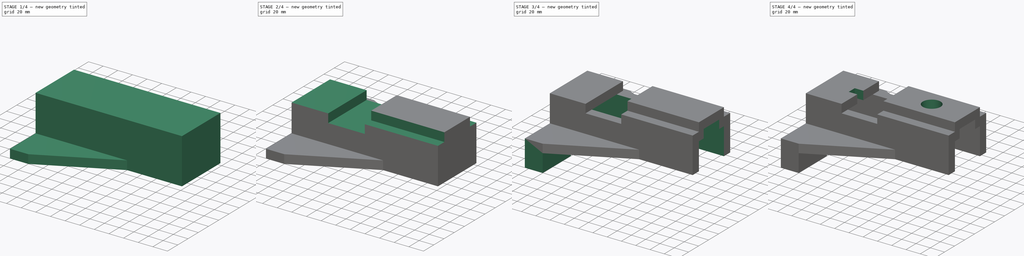
[diagram: build sequence overview — one tinted view per stage of 4, left to right]
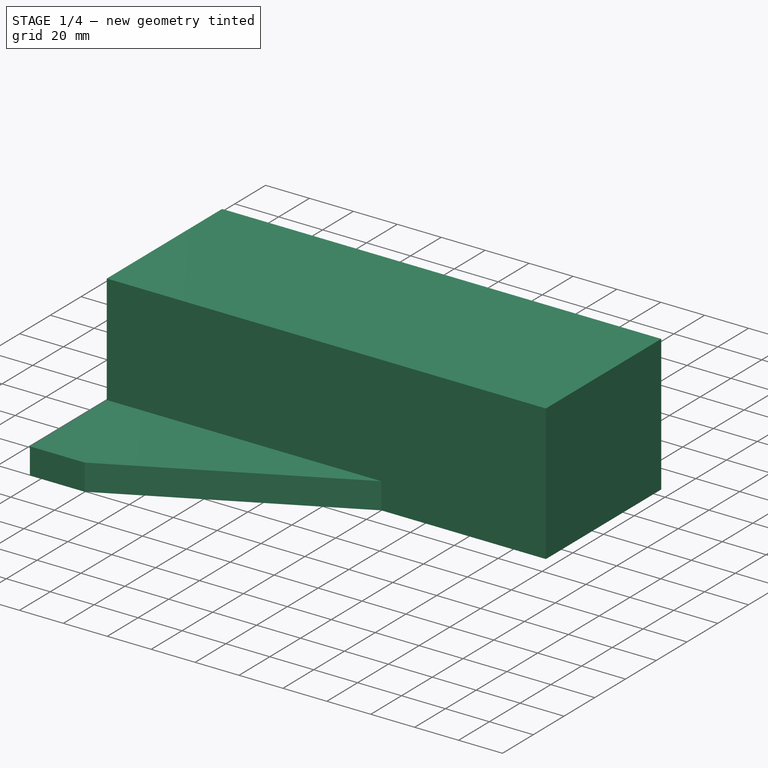
[diagram: stage 1 of 4 — iso view after this stage's code; geometry added in this stage tinted green]
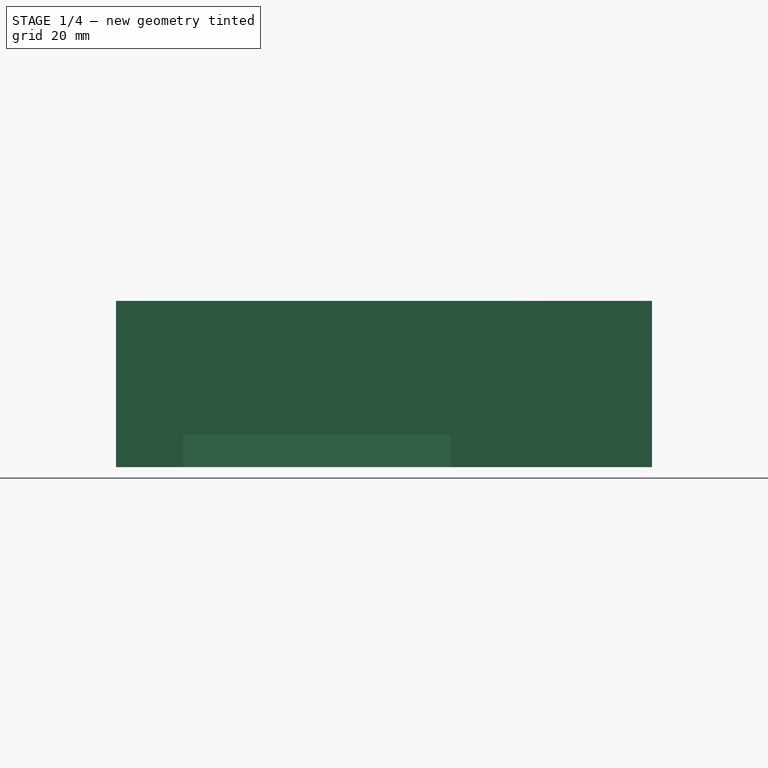
[diagram: stage 1 of 4 — front view after this stage's code; geometry added in this stage tinted green]
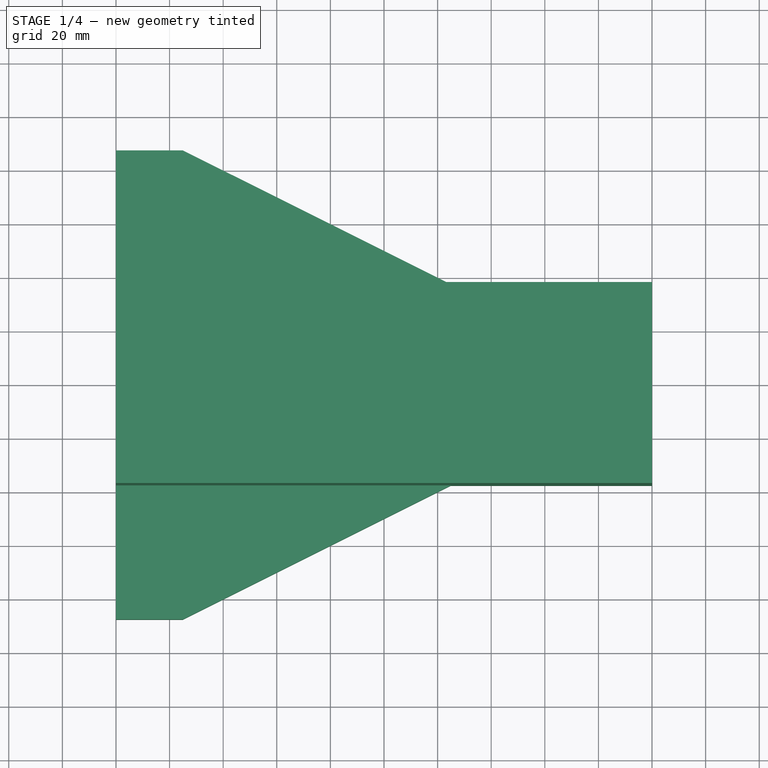
[diagram: stage 1 of 4 — top view after this stage's code; geometry added in this stage tinted green]
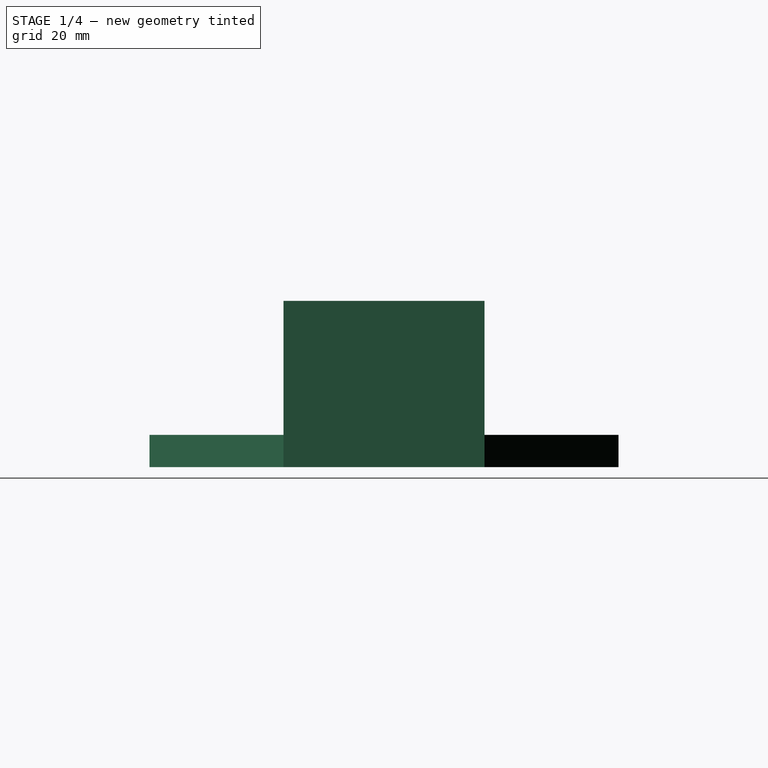
[diagram: stage 1 of 4 — right view after this stage's code; geometry added in this stage tinted green]
FCSTD DOCUMENT  (FreeCAD 0.16R)
Label: Fig 3.40 Final
License: All rights reserved
LicenseURL: http://en.wikipedia.org/wiki/All_rights_reserved
objects: Sketcher::SketchObject×10, PartDesign::Pocket×8, PartDesign::Pad×2
note: 30 computed .brp shape members not serialized (recipe doc carries the construction recipe); baked Part::Feature solids carry a one-line shape summary decoded from their .brp

FEATURE [Sketcher::SketchObject] Sketch
  sketch-geometry (8):
    g0: LineSegment StartX=0 StartY=87.5 StartZ=0 EndX=0 EndY=-87.5 EndZ=0
    g1: LineSegment StartX=0 StartY=-87.5 StartZ=0 EndX=25 EndY=-87.5 EndZ=0
    g2: LineSegment StartX=25 StartY=-87.5 StartZ=0 EndX=125 EndY=-37.5 EndZ=0
    g3: LineSegment StartX=125 StartY=-37.5 StartZ=0 EndX=200 EndY=-37.5 EndZ=0
    g4: LineSegment StartX=200 StartY=-37.5 StartZ=0 EndX=200 EndY=37.5 EndZ=0
    g5: LineSegment StartX=200 StartY=37.5 StartZ=0 EndX=125 EndY=37.5 EndZ=0
    g6: LineSegment StartX=125 StartY=37.5 StartZ=0 EndX=25 EndY=87.5 EndZ=0
    g7: LineSegment StartX=25 StartY=87.5 StartZ=0 EndX=0 EndY=87.5 EndZ=0
  constraints (24):
    c: Vertical(g0)
    c: Coincident(g0,g1)
    c: Horizontal(g1)
    c: Coincident(g1,g2)
    c: Coincident(g2,g3)
    c: Horizontal(g3)
    c: Coincident(g3,g4)
    c: Vertical(g4)
    c: Coincident(g4,g5)
    c: Horizontal(g5)
    c: Coincident(g5,g6)
    c: Coincident(g6,g7)
    c: Coincident(g7,g0)
    c: Horizontal(g7)
    c: DistanceY(g0,g0) = 175
    c: DistanceX(g0,g3) = 200
    c: DistanceX(g1,g1) = 25
    c: DistanceX(g7,g7) = 25
    c: DistanceX(g5,g5) = 75
    c: DistanceX(g3,g3) = 75
    c: DistanceY(g4,g4) = 75
    c: Symmetric(g0,g0,g-1)
    c: Symmetric(g4,g3,g-1)
    c: PointOnObject(g0,g-2)
FEATURE [PartDesign::Pad] Pad
  Length = 62
  Length2 = 100
  Sketch = -> Sketch
  Type = 0
FEATURE [Sketcher::SketchObject] Sketch001
  ExternalGeometry = -> [Pad]
  Placement = pos=(0,0,62) rot=(0,0,1;0rad)
  Support = -> Pad [Face10]
  sketch-geometry (8):
    g0: LineSegment StartX=-20.5928 StartY=37.5 StartZ=0 EndX=154.306 EndY=37.5 EndZ=0
    g1: LineSegment StartX=154.306 StartY=37.5 StartZ=0 EndX=154.306 EndY=96.3916 EndZ=0
    g2: LineSegment StartX=154.306 StartY=96.3916 StartZ=0 EndX=-20.5928 EndY=96.3916 EndZ=0
    g3: LineSegment StartX=-20.5928 StartY=96.3916 StartZ=0 EndX=-20.5928 EndY=37.5 EndZ=0
    g4: LineSegment StartX=-11.0935 StartY=-37.5 StartZ=0 EndX=138.102 EndY=-37.5 EndZ=0
    g5: LineSegment StartX=138.102 StartY=-37.5 StartZ=0 EndX=138.102 EndY=-100.859 EndZ=0
    g6: LineSegment StartX=138.102 StartY=-100.859 StartZ=0 EndX=-11.0935 EndY=-100.859 EndZ=0
    g7: LineSegment StartX=-11.0935 StartY=-100.859 StartZ=0 EndX=-11.0935 EndY=-37.5 EndZ=0
  constraints (18):
    c: Coincident(g0,g1)
    c: Coincident(g1,g2)
    c: Coincident(g2,g3)
    c: Coincident(g3,g0)
    c: Horizontal(g0)
    c: Horizontal(g2)
    c: Vertical(g1)
    c: Vertical(g3)
    c: Coincident(g4,g5)
    c: Coincident(g5,g6)
    c: Coincident(g6,g7)
    c: Coincident(g7,g4)
    c: Horizontal(g4)
    c: Horizontal(g6)
    c: Vertical(g5)
    c: Vertical(g7)
    c: PointOnObject(g-4,g4)
    c: PointOnObject(g-3,g0)
FEATURE [PartDesign::Pocket] Pocket
  Length = 50
  Sketch = -> Sketch001
  Type = 0
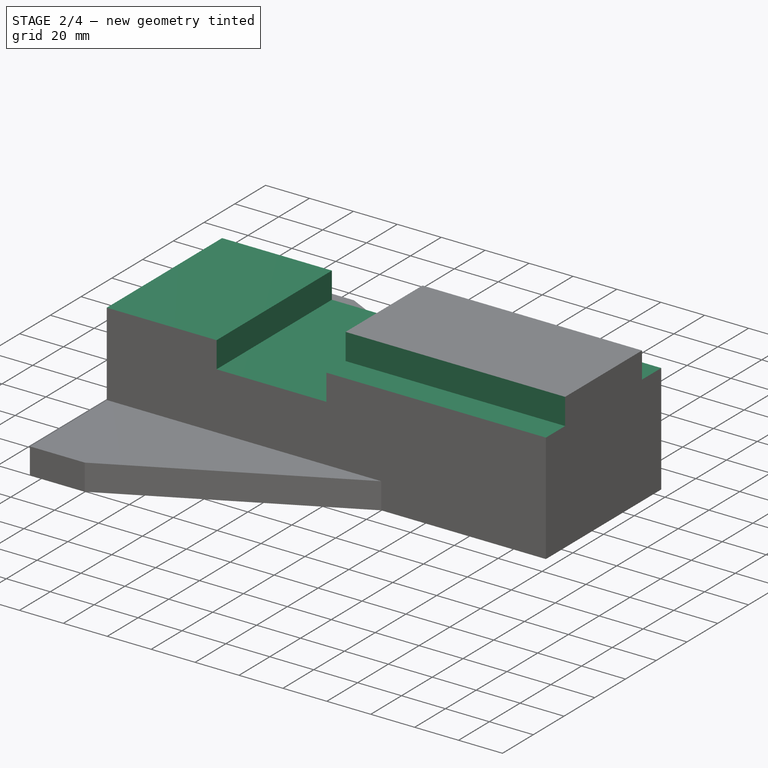
[diagram: stage 2 of 4 — iso view after this stage's code; geometry added in this stage tinted green]
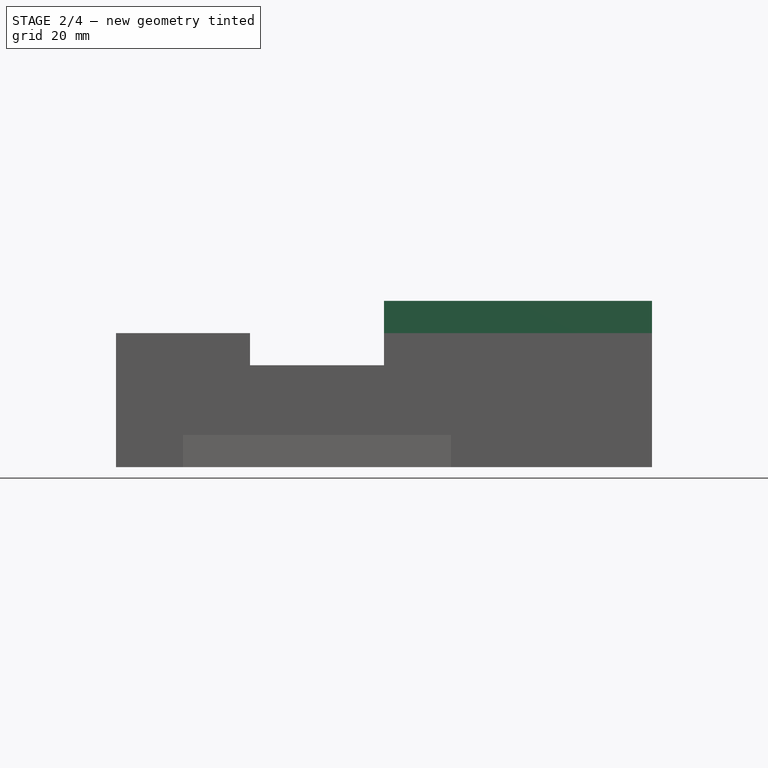
[diagram: stage 2 of 4 — front view after this stage's code; geometry added in this stage tinted green]
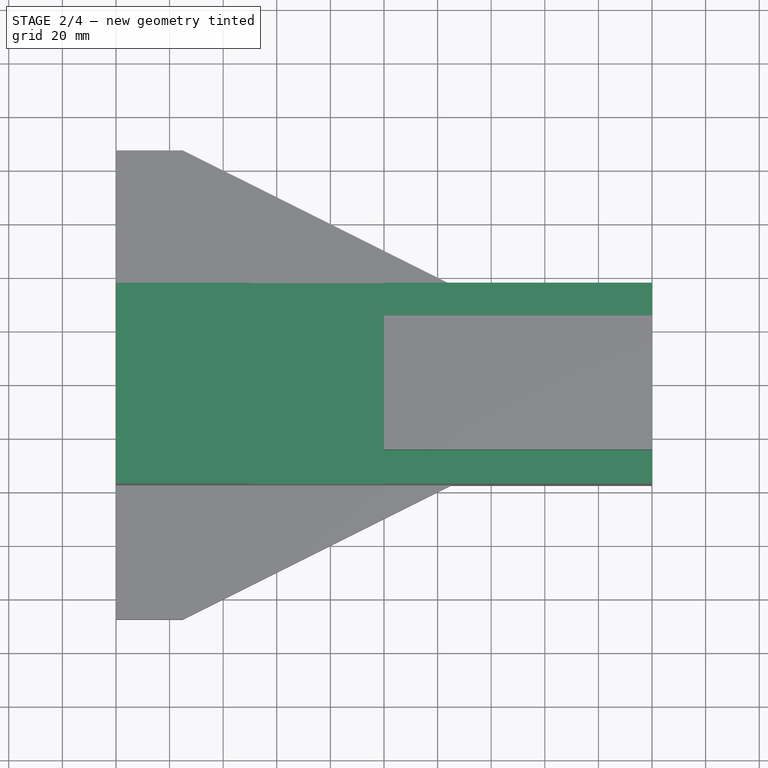
[diagram: stage 2 of 4 — top view after this stage's code; geometry added in this stage tinted green]
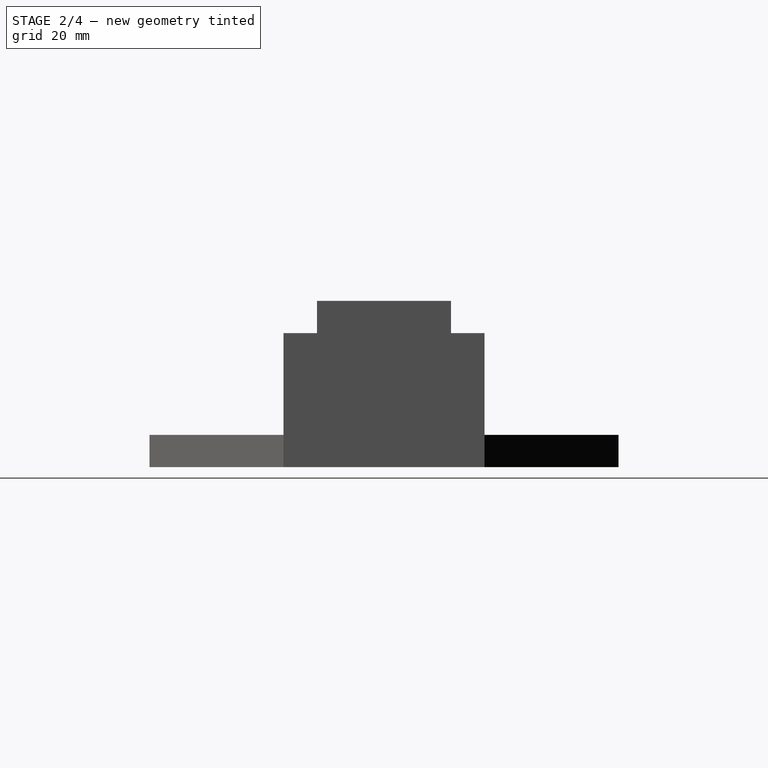
[diagram: stage 2 of 4 — right view after this stage's code; geometry added in this stage tinted green]
FEATURE [Sketcher::SketchObject] Sketch002
  ExternalGeometry = -> [Pocket]
  Placement = pos=(200,0,0) rot=(0.57735,0.57735,0.57735;2.0944rad)
  Support = -> Pocket [Face9]
  sketch-geometry (8):
    g0: LineSegment StartX=-49.4508 StartY=68.2718 StartZ=0 EndX=-25 EndY=68.2718 EndZ=0
    g1: LineSegment StartX=-25 StartY=68.2718 StartZ=0 EndX=-25 EndY=50 EndZ=0
    g2: LineSegment StartX=-25 StartY=50 StartZ=0 EndX=-49.4508 EndY=50 EndZ=0
    g3: LineSegment StartX=-49.4508 StartY=50 StartZ=0 EndX=-49.4508 EndY=68.2718 EndZ=0
    g4: LineSegment StartX=50.0126 StartY=68.2718 StartZ=0 EndX=25 EndY=68.2718 EndZ=0
    g5: LineSegment StartX=25 StartY=68.2718 StartZ=0 EndX=25 EndY=50 EndZ=0
    g6: LineSegment StartX=25 StartY=50 StartZ=0 EndX=50.0126 EndY=50 EndZ=0
    g7: LineSegment StartX=50.0126 StartY=50 StartZ=0 EndX=50.0126 EndY=68.2718 EndZ=0
  constraints (20):
    c: Coincident(g0,g1)
    c: Coincident(g1,g2)
    c: Coincident(g2,g3)
    c: Coincident(g3,g0)
    c: Horizontal(g0)
    c: Horizontal(g2)
    c: Vertical(g1)
    c: Vertical(g3)
    c: Coincident(g4,g5)
    c: Coincident(g5,g6)
    c: Coincident(g6,g7)
    c: Coincident(g7,g4)
    c: Horizontal(g4)
    c: Horizontal(g6)
    c: Vertical(g5)
    c: Vertical(g7)
    c: Symmetric(g0,g4,g-2)
    c: DistanceX(g0,g4) = 50
    c: DistanceY(g1,g-3) = 12
    c: DistanceY(g5,g-3) = 12
FEATURE [PartDesign::Pocket] Pocket001
  Length = 5
  Sketch = -> Sketch002
  Type = 1
FEATURE [Sketcher::SketchObject] Sketch003
  ExternalGeometry = -> [Pocket001]
  Placement = pos=(0,0,62) rot=(0,0,1;0rad)
  Support = -> Pocket001 [Face8]
  sketch-geometry (4):
    g0: LineSegment StartX=-9.4626 StartY=51.2434 StartZ=0 EndX=100 EndY=51.2434 EndZ=0
    g1: LineSegment StartX=100 StartY=51.2434 StartZ=0 EndX=100 EndY=-48.9476 EndZ=0
    g2: LineSegment StartX=100 StartY=-48.9476 StartZ=0 EndX=-9.4626 EndY=-48.9476 EndZ=0
    g3: LineSegment StartX=-9.4626 StartY=-48.9476 StartZ=0 EndX=-9.4626 EndY=51.2434 EndZ=0
  constraints (9):
    c: Coincident(g0,g1)
    c: Coincident(g1,g2)
    c: Coincident(g2,g3)
    c: Coincident(g3,g0)
    c: Horizontal(g0)
    c: Horizontal(g2)
    c: Vertical(g1)
    c: Vertical(g3)
    c: DistanceX(g0,g-3) = 100
FEATURE [PartDesign::Pocket] Pocket002
  Length = 12
  Sketch = -> Sketch003
  Type = 0
FEATURE [Sketcher::SketchObject] Sketch004
  ExternalGeometry = -> [Pocket002]
  Placement = pos=(0,0,50) rot=(0,0,1;0rad)
  Support = -> Pocket002 [Face16]
  sketch-geometry (4):
    g0: LineSegment StartX=50 StartY=56.2758 StartZ=0 EndX=100 EndY=56.2758 EndZ=0
    g1: LineSegment StartX=100 StartY=56.2758 StartZ=0 EndX=100 EndY=-54.895 EndZ=0
    g2: LineSegment StartX=100 StartY=-54.895 StartZ=0 EndX=50 EndY=-54.895 EndZ=0
    g3: LineSegment StartX=50 StartY=-54.895 StartZ=0 EndX=50 EndY=56.2758 EndZ=0
  constraints (10):
    c: Coincident(g0,g1)
    c: Coincident(g1,g2)
    c: Coincident(g2,g3)
    c: Coincident(g3,g0)
    c: Horizontal(g0)
    c: Horizontal(g2)
    c: Vertical(g1)
    c: Vertical(g3)
    c: PointOnObject(g-3,g1)
    c: DistanceX(g0,g-3) = 50
FEATURE [PartDesign::Pocket] Pocket003
  Length = 12
  Sketch = -> Sketch004
  Type = 0
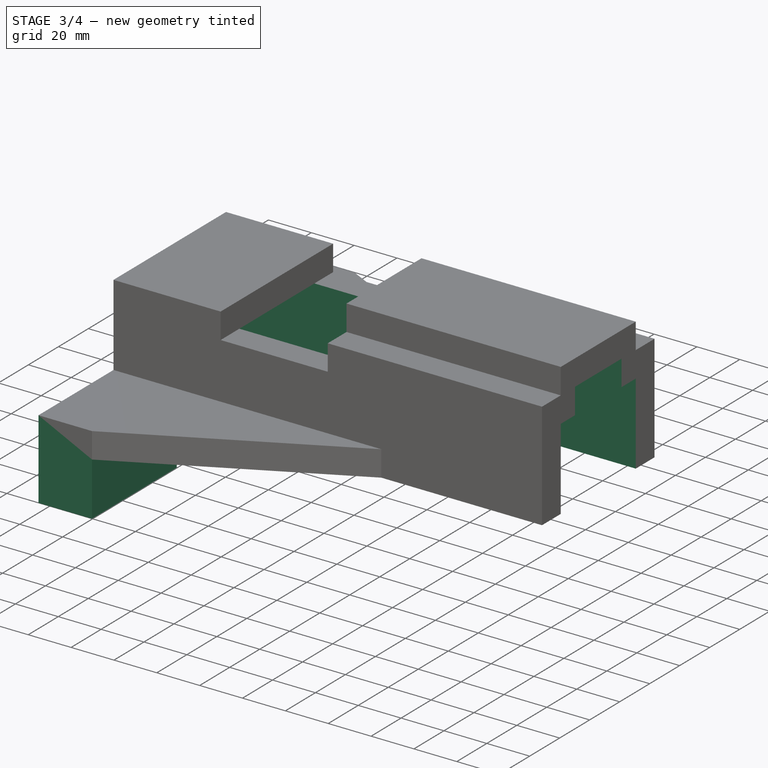
[diagram: stage 3 of 4 — iso view after this stage's code; geometry added in this stage tinted green]
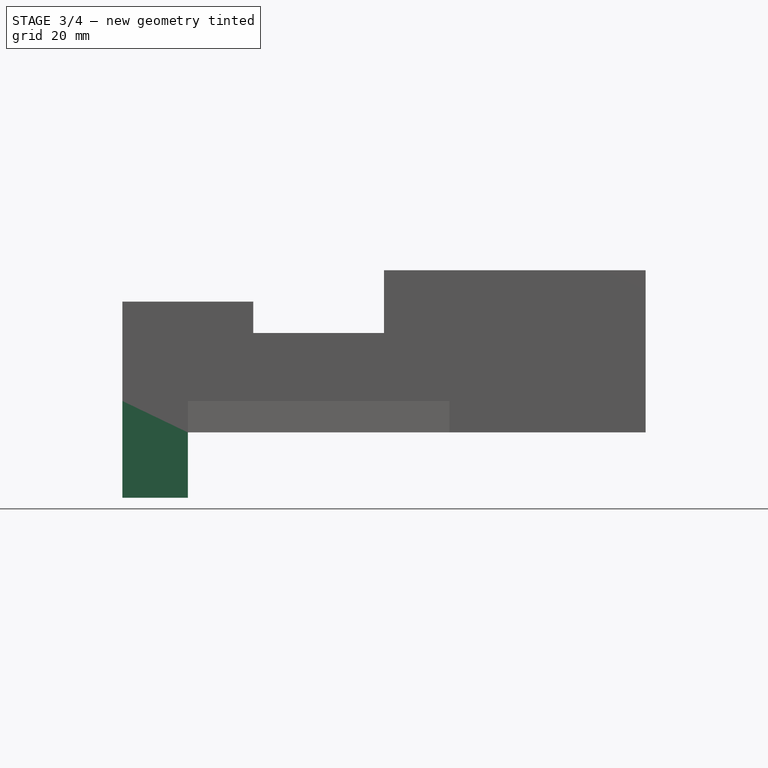
[diagram: stage 3 of 4 — front view after this stage's code; geometry added in this stage tinted green]
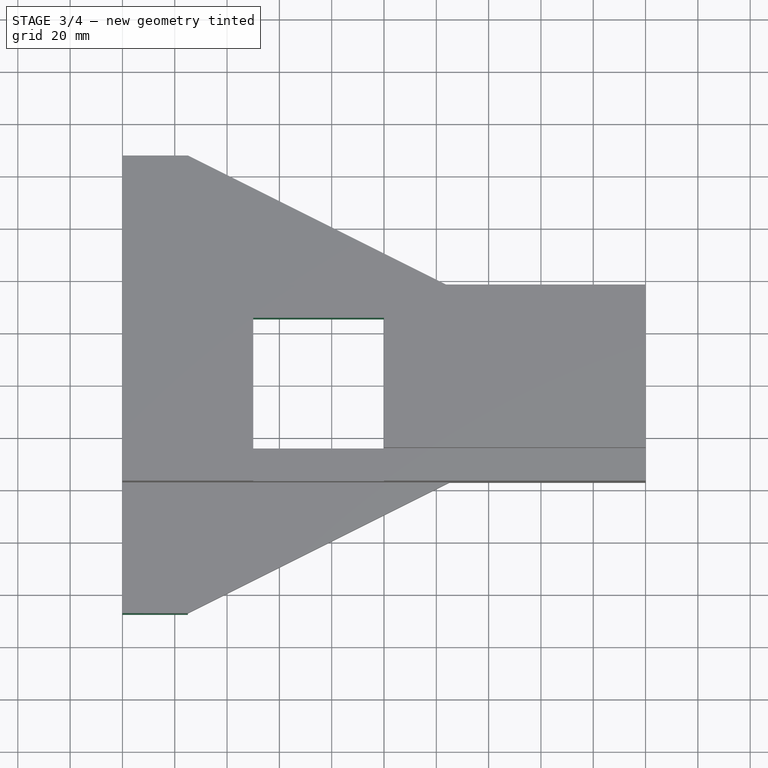
[diagram: stage 3 of 4 — top view after this stage's code; geometry added in this stage tinted green]
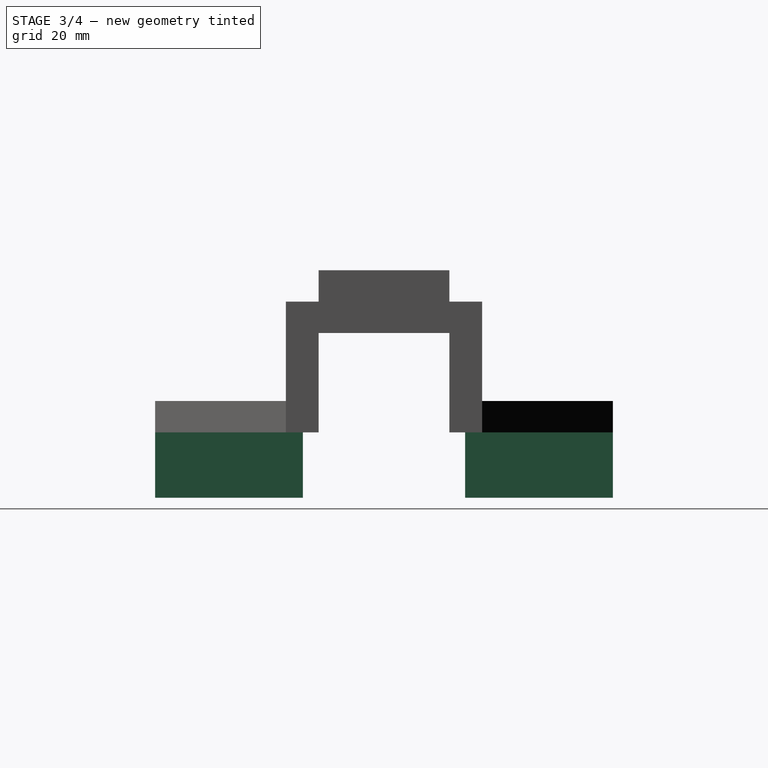
[diagram: stage 3 of 4 — right view after this stage's code; geometry added in this stage tinted green]
FEATURE [Sketcher::SketchObject] Sketch005
  ExternalGeometry = -> [Pocket003]
  Placement = pos=(0,0,0) rot=(1,0,0;3.14159rad)
  Support = -> Pocket003 [Face2]
  sketch-geometry (4):
    g0: LineSegment StartX=0 StartY=87.5 StartZ=0 EndX=25 EndY=87.5 EndZ=0
    g1: LineSegment StartX=25 StartY=87.5 StartZ=0 EndX=25 EndY=-87.5 EndZ=0
    g2: LineSegment StartX=25 StartY=-87.5 StartZ=0 EndX=0 EndY=-87.5 EndZ=0
    g3: LineSegment StartX=0 StartY=-87.5 StartZ=0 EndX=0 EndY=87.5 EndZ=0
  constraints (10):
    c: Coincident(g0,g1)
    c: Coincident(g1,g2)
    c: Coincident(g2,g3)
    c: Coincident(g3,g0)
    c: Horizontal(g0)
    c: Horizontal(g2)
    c: Vertical(g1)
    c: Vertical(g3)
    c: Coincident(g-4,g1)
    c: Coincident(g0,g-3)
FEATURE [PartDesign::Pad] Pad001
  Length = 25
  Length2 = 100
  Sketch = -> Sketch005
  Type = 0
FEATURE [Sketcher::SketchObject] Sketch006
  ExternalGeometry = -> [Pad001]
  Placement = pos=(0,0,0) rot=(0.57735,-0.57735,-0.57735;2.0944rad)
  Support = -> Pad001 [Face21]
  sketch-geometry (8):
    g0: LineSegment StartX=-25 StartY=38 StartZ=0 EndX=25 EndY=38 EndZ=0
    g1: LineSegment StartX=25 StartY=38 StartZ=0 EndX=25 EndY=0 EndZ=0
    g2: LineSegment StartX=-25 StartY=0 StartZ=0 EndX=-25 EndY=38 EndZ=0
    g3: LineSegment StartX=-31 StartY=0 StartZ=0 EndX=-25 EndY=0 EndZ=0
    g4: LineSegment StartX=31 StartY=0 StartZ=0 EndX=31 EndY=-41.1261 EndZ=0
    g5: LineSegment StartX=31 StartY=-41.1261 StartZ=0 EndX=-31 EndY=-41.1261 EndZ=0
    g6: LineSegment StartX=-31 StartY=-41.1261 StartZ=0 EndX=-31 EndY=0 EndZ=0
    g7: LineSegment StartX=25 StartY=0 StartZ=0 EndX=31 EndY=0 EndZ=0
  constraints (21):
    c: Coincident(g0,g1)
    c: Coincident(g2,g0)
    c: Horizontal(g0)
    c: Vertical(g1)
    c: Vertical(g2)
    c: Coincident(g7,g4)
    c: Coincident(g4,g5)
    c: Coincident(g5,g6)
    c: Coincident(g6,g3)
    c: Horizontal(g3)
    c: Horizontal(g5)
    c: Vertical(g4)
    c: Vertical(g6)
    c: Symmetric(g5,g4,g-2)
    c: DistanceX(g5,g5) = 62
    c: DistanceY(g-3,g7) = 25
    c: Symmetric(g0,g0,g-2)
    c: DistanceY(g7,g0) = 38
    c: Coincident(g3,g2)
    c: PointOnObject(g7,g1)
    c: Tangent(g3,g7)
FEATURE [PartDesign::Pocket] Pocket004
  Length = 5
  Sketch = -> Sketch006
  Type = 1
FEATURE [Sketcher::SketchObject] Sketch007
  ExternalGeometry = -> [Pocket004]
  Placement = pos=(100,0,0) rot=(0.57735,-0.57735,-0.57735;2.0944rad)
  Support = -> Pocket004 [Face20]
  sketch-geometry (4):
    g0: LineSegment StartX=-15.5 StartY=38 StartZ=0 EndX=15.5 EndY=38 EndZ=0
    g1: LineSegment StartX=15.5 StartY=38 StartZ=0 EndX=15.5 EndY=50 EndZ=0
    g2: LineSegment StartX=15.5 StartY=50 StartZ=0 EndX=-15.5 EndY=50 EndZ=0
    g3: LineSegment StartX=-15.5 StartY=50 StartZ=0 EndX=-15.5 EndY=38 EndZ=0
  constraints (12):
    c: Coincident(g0,g1)
    c: Coincident(g1,g2)
    c: Coincident(g2,g3)
    c: Coincident(g3,g0)
    c: Horizontal(g0)
    c: Horizontal(g2)
    c: Vertical(g1)
    c: Vertical(g3)
    c: Symmetric(g0,g0,g-2)
    c: PointOnObject(g0,g-3)
    c: DistanceX(g2,g2) = 31
    c: DistanceY(g3,g3) = 12
FEATURE [PartDesign::Pocket] Pocket005
  Length = 5
  Sketch = -> Sketch007
  Type = 1
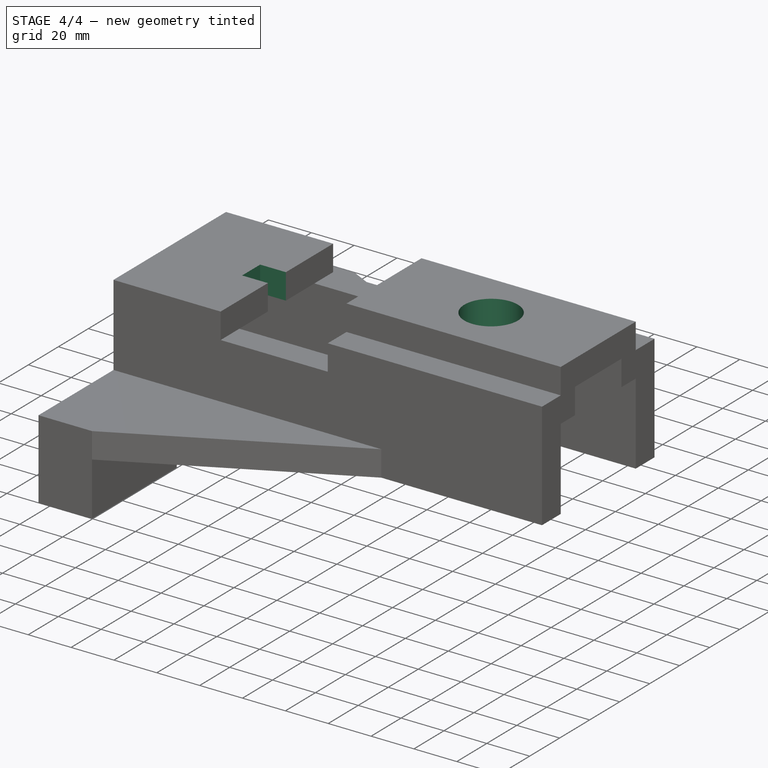
[diagram: stage 4 of 4 — iso view after this stage's code; geometry added in this stage tinted green]
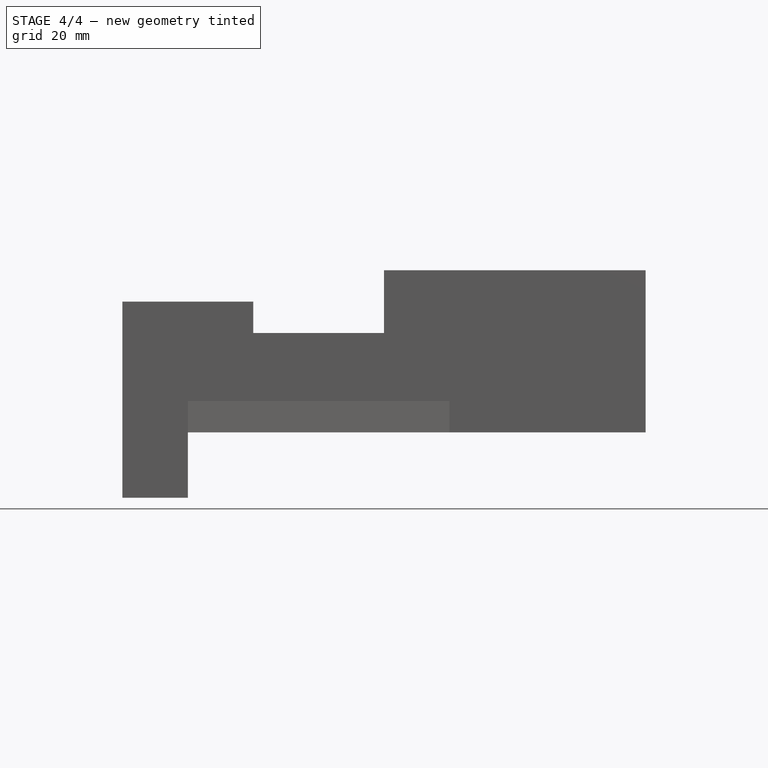
[diagram: stage 4 of 4 — front view after this stage's code; geometry added in this stage tinted green]
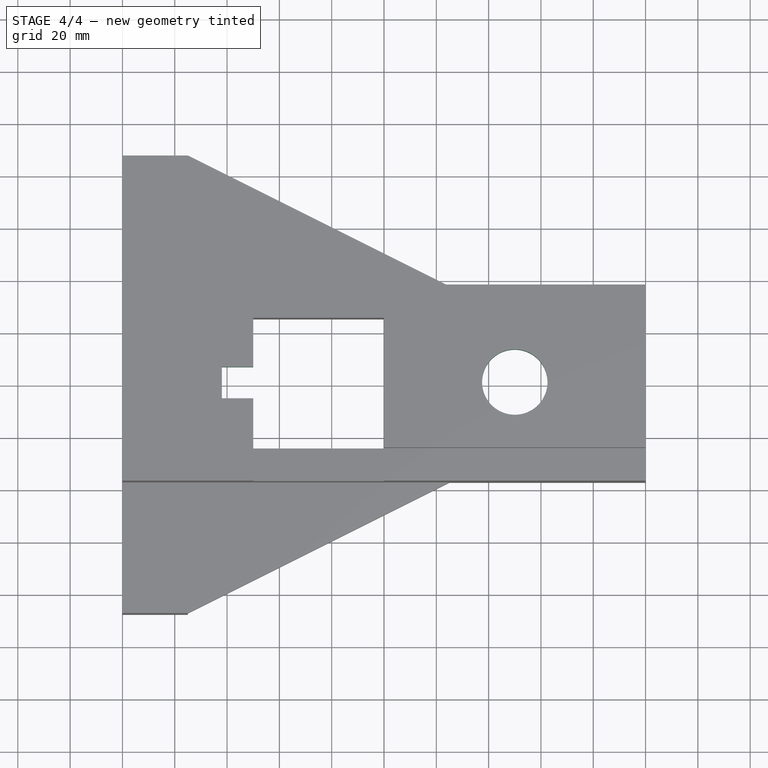
[diagram: stage 4 of 4 — top view after this stage's code; geometry added in this stage tinted green]
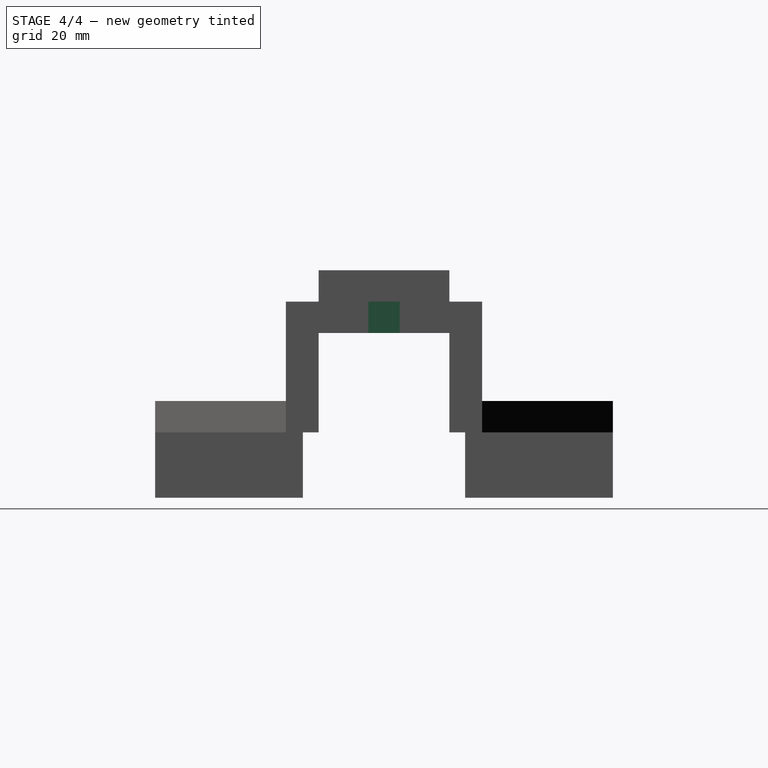
[diagram: stage 4 of 4 — right view after this stage's code; geometry added in this stage tinted green]
FEATURE [Sketcher::SketchObject] Sketch008
  ExternalGeometry = -> [Pocket005]
  Placement = pos=(0,0,62) rot=(0,0,1;0rad)
  Support = -> Pocket005 [Face32]
  sketch-geometry (1):
    g0: Circle CenterX=150 CenterY=0 CenterZ=0 NormalX=0 NormalY=0 NormalZ=1 Radius=12.5
  constraints (3):
    c: PointOnObject(g0,g-1)
    c: DistanceX(g0,g-3) = 50
    c: Radius(g0) = 12.5
FEATURE [PartDesign::Pocket] Pocket006
  Length = 5
  Sketch = -> Sketch008
  Type = 1
FEATURE [Sketcher::SketchObject] Sketch009
  ExternalGeometry = -> [Pocket006]
  Placement = pos=(0,0,50) rot=(0,0,1;0rad)
  Support = -> Pocket006 [Face9]
  sketch-geometry (4):
    g0: LineSegment StartX=38 StartY=6 StartZ=0 EndX=63.5522 EndY=6 EndZ=0
    g1: LineSegment StartX=63.5522 StartY=6 StartZ=0 EndX=63.5522 EndY=-6 EndZ=0
    g2: LineSegment StartX=63.5522 StartY=-6 StartZ=0 EndX=38 EndY=-6 EndZ=0
    g3: LineSegment StartX=38 StartY=-6 StartZ=0 EndX=38 EndY=6 EndZ=0
  constraints (11):
    c: Coincident(g0,g1)
    c: Coincident(g1,g2)
    c: Coincident(g2,g3)
    c: Coincident(g3,g0)
    c: Horizontal(g0)
    c: Horizontal(g2)
    c: Vertical(g1)
    c: Vertical(g3)
    c: DistanceY(g3,g3) = 12
    c: Symmetric(g1,g0,g-1)
    c: DistanceX(g0,g-3) = 12
FEATURE [PartDesign::Pocket] Pocket007
  Length = 5
  Sketch = -> Sketch009
  Type = 1
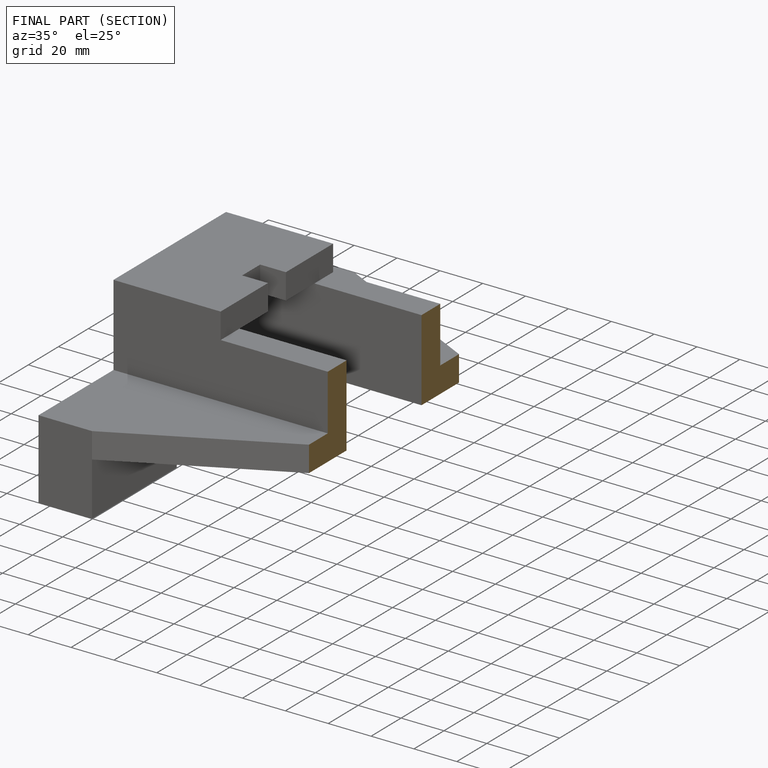
[diagram: finished part — half-section view (interior)]
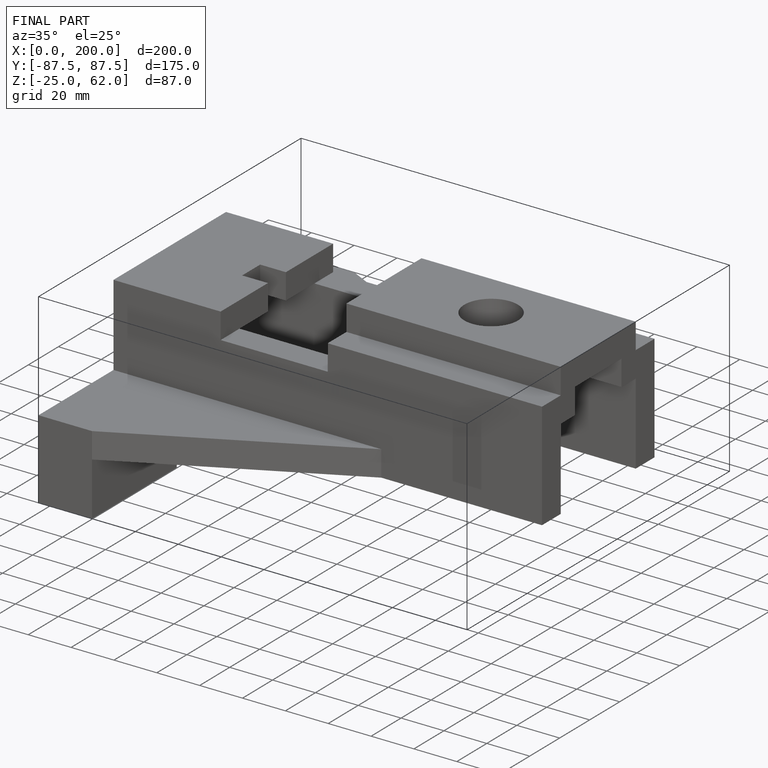
[diagram: finished part — iso view with bounding-box wireframe]
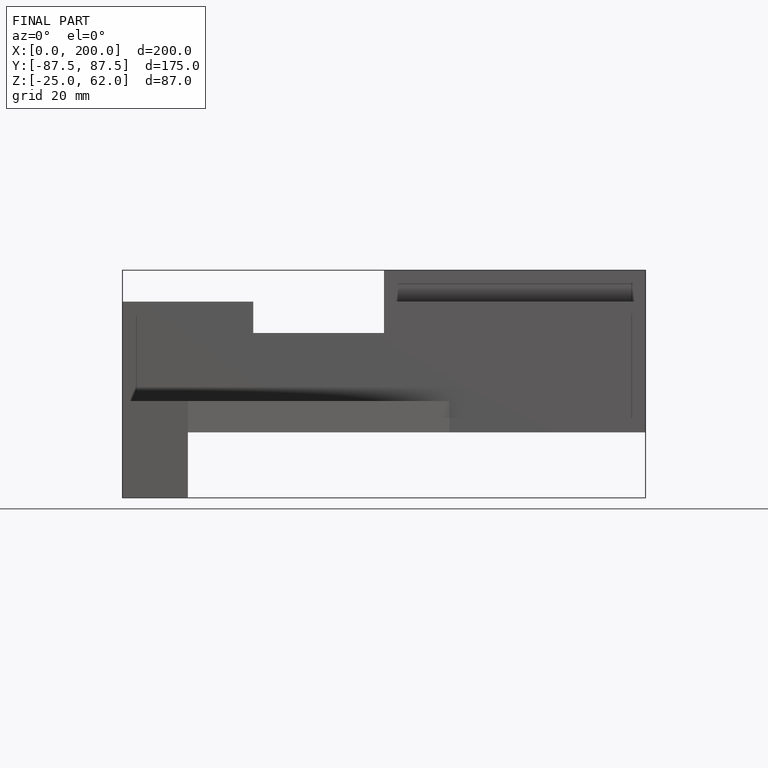
[diagram: finished part — front view with bounding-box wireframe]
